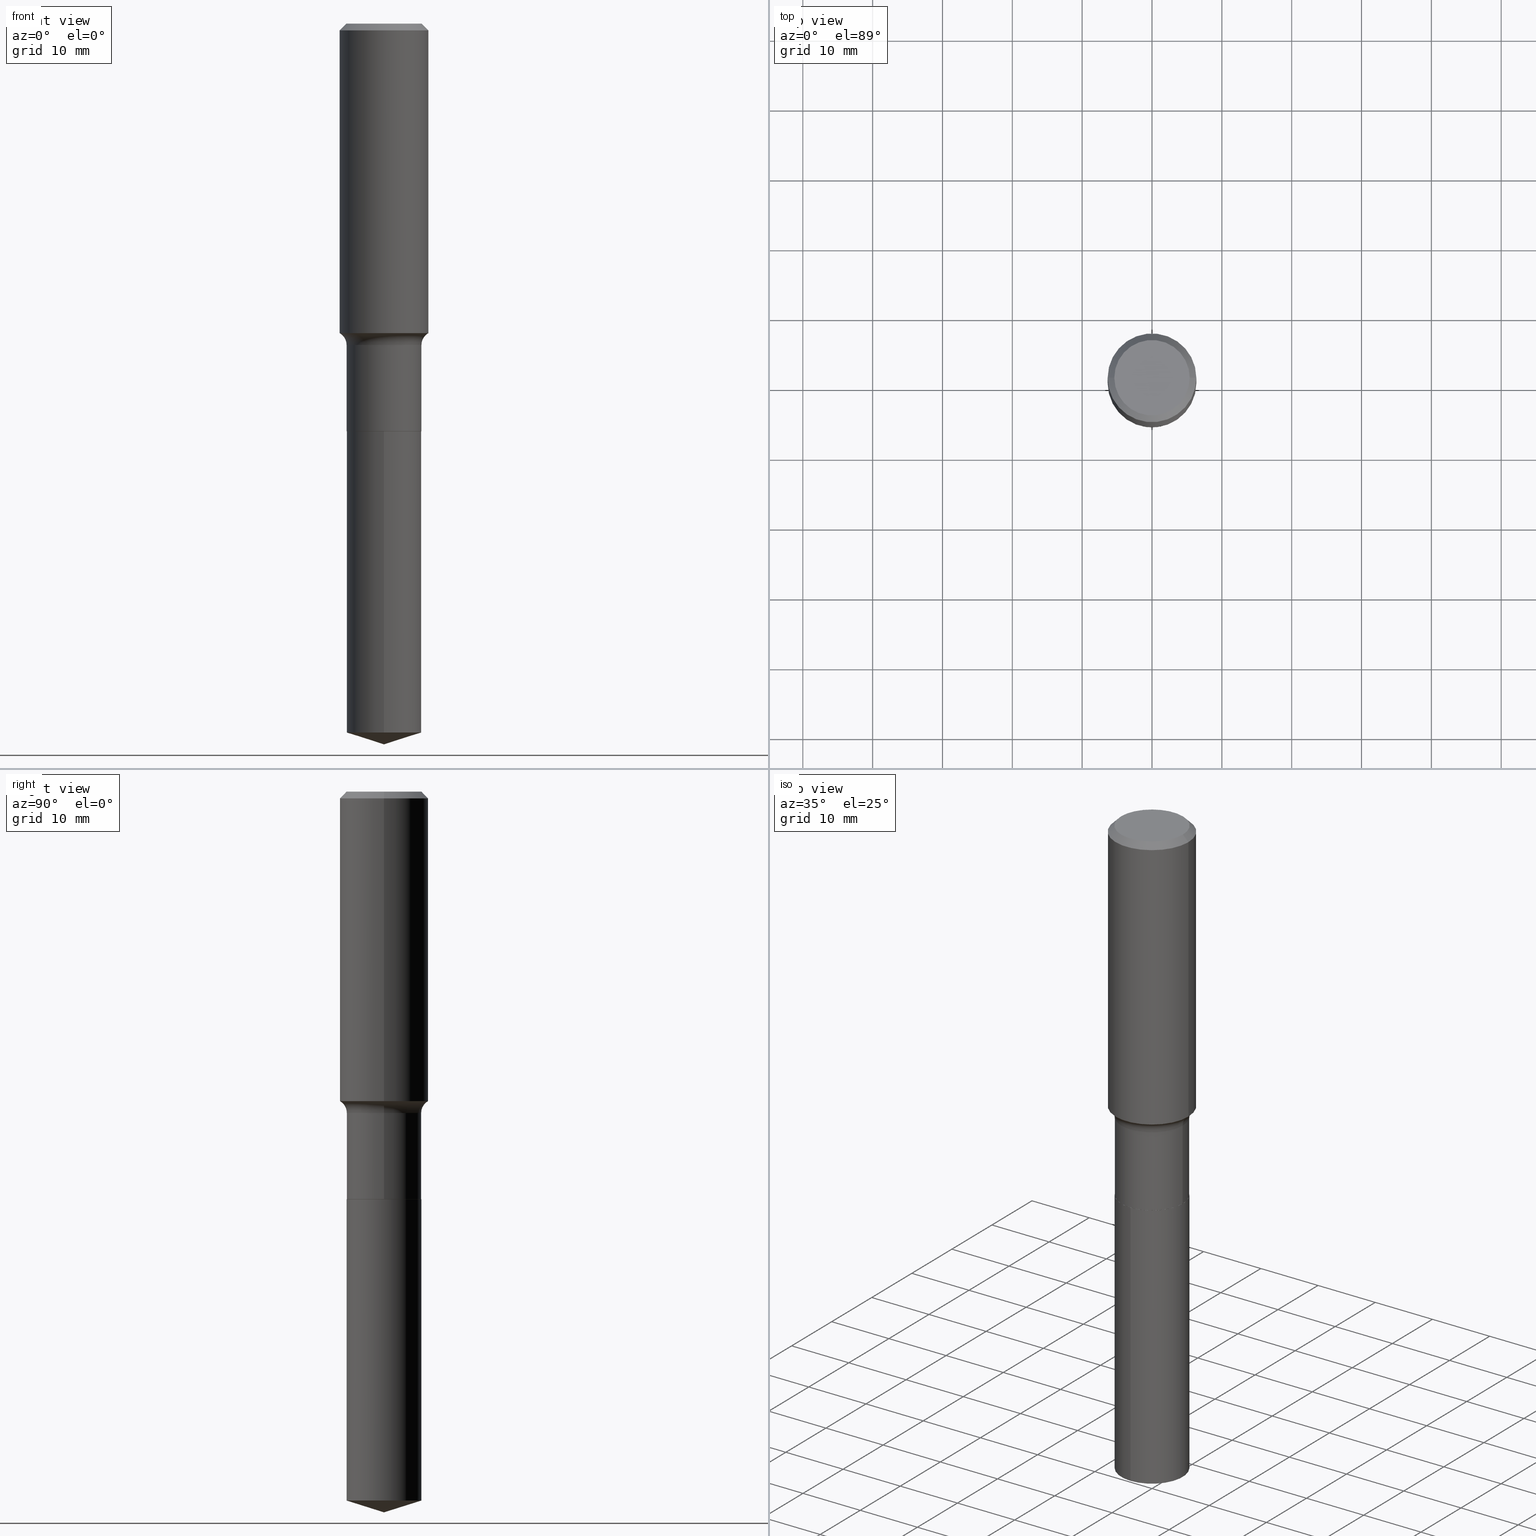
[diagram: canonical four-view strip — front | top / right | iso, engineering-drawing reading convention]
A machine part, canonical four-view strip (front | top / right | iso — engineering-drawing reading convention). The complete STEP part file that produces these views, byte-faithful:
ISO-10303-21;
HEADER;
FILE_DESCRIPTION (( 'STEP AP203' ),
    '1' );
FILE_NAME ('51358.STEP',
    '2024-04-19T12:51:49',
    ( '' ),
    ( '' ),
    'SwSTEP 2.0',
    'SolidWorks 2023',
    '' );
FILE_SCHEMA (( 'CONFIG_CONTROL_DESIGN' ));
ENDSEC;

DATA;
#1 = FACE_OUTER_BOUND ( 'NONE', #180, .T. ) ;
#2 = EDGE_CURVE ( 'NONE', #189, #69, #329, .T. ) ;
#3 = CIRCLE ( 'NONE', #458, 0.2109499999999999986 ) ;
#4 = ORIENTED_EDGE ( 'NONE', *, *, #228, .T. ) ;
#5 = ADVANCED_FACE ( 'NONE', ( #1 ), #83, .T. ) ;
#6 = CARTESIAN_POINT ( 'NONE',  ( 0.2104499999999999982, -9.489147982707895563E-15, -2.296899999999999942 ) ) ;
#7 = ORIENTED_EDGE ( 'NONE', *, *, #14, .T. ) ;
#8 = CARTESIAN_POINT ( 'NONE',  ( 5.616997300926640597E-29, -8.019583487188821005E-15, -2.296899999999999942 ) ) ;
#9 = UNCERTAINTY_MEASURE_WITH_UNIT (LENGTH_MEASURE( 1.000000000000000082E-05 ), #406, 'distance_accuracy_value', 'NONE');
#10 = DATE_TIME_ROLE ( 'creation_date' ) ;
#11 = CIRCLE ( 'NONE', #277, 0.07800000000000002764 ) ;
#12 = AXIS2_PLACEMENT_3D ( 'NONE', #174, #398, #353 ) ;
#13 = CARTESIAN_POINT ( 'NONE',  ( -0.2109499999999999431, -5.672787342964832849E-15, -1.811700000000000310 ) ) ;
#14 = EDGE_CURVE ( 'NONE', #29, #36, #197, .T. ) ;
#15 = DIRECTION ( 'NONE',  ( -2.445665733162278401E-29, 3.491199328203490904E-15, 1.000000000000000000 ) ) ;
#16 = SHAPE_DEFINITION_REPRESENTATION ( #18, #404 ) ;
#17 = CARTESIAN_POINT ( 'NONE',  ( 1.498889901086028954E-15, 0.2109499999999919495, -2.296900000000000830 ) ) ;
#18 = PRODUCT_DEFINITION_SHAPE ( 'NONE', 'NONE',  #360 ) ;
#19 = FACE_OUTER_BOUND ( 'NONE', #176, .T. ) ;
#20 = APPROVAL_DATE_TIME ( #237, #114 ) ;
#21 = ADVANCED_FACE ( 'NONE', ( #490 ), #293, .T. ) ;
#22 = DIRECTION ( 'NONE',  ( -1.000000000000000000, 7.105427357601001859E-15, 0.000000000000000000 ) ) ;
#23 = CARTESIAN_POINT ( 'NONE',  ( -1.591006383764330940E-46, 2.271535455632768948E-32, 6.505936120470318766E-18 ) ) ;
#24 = EDGE_LOOP ( 'NONE', ( #292, #492, #452 ) ) ;
#25 = DIRECTION ( 'NONE',  ( -2.445468806185136597E-29, 3.491481338843145583E-15, 1.000000000000000000 ) ) ;
#26 = LOCAL_TIME ( 8, 51, 49.00000000000000000, #358 ) ;
#27 = DIRECTION ( 'NONE',  ( 1.000000000000000000, -6.982962677686266711E-15, 4.876376119033268190E-29 ) ) ;
#28 = CALENDAR_DATE ( 2024, 19, 4 ) ;
#29 = VERTEX_POINT ( 'NONE', #459 ) ;
#30 = LINE ( 'NONE', #62, #417 ) ;
#31 = CIRCLE ( 'NONE', #299, 0.2109499999999999431 ) ;
#32 = CIRCLE ( 'NONE', #381, 0.2500000000000002220 ) ;
#33 = ADVANCED_FACE ( 'NONE', ( #113 ), #414, .F. ) ;
#34 = ORIENTED_EDGE ( 'NONE', *, *, #295, .T. ) ;
#35 = CARTESIAN_POINT ( 'NONE',  ( 0.2124999999999999944, -1.651955437087975937E-15, 6.505936120481282700E-18 ) ) ;
#36 = VERTEX_POINT ( 'NONE', #116 ) ;
#37 = CIRCLE ( 'NONE', #252, 0.07800000000000002764 ) ;
#38 = ORIENTED_EDGE ( 'NONE', *, *, #112, .F. ) ;
#39 = ADVANCED_FACE ( 'NONE', ( #333 ), #74, .F. ) ;
#40 = ORIENTED_EDGE ( 'NONE', *, *, #476, .T. ) ;
#41 = ORIENTED_EDGE ( 'NONE', *, *, #271, .T. ) ;
#42 = ADVANCED_FACE ( 'NONE', ( #79 ), #230, .T. ) ;
#43 = VERTEX_POINT ( 'NONE', #234 ) ;
#44 = CIRCLE ( 'NONE', #61, 0.2104499999999999982 ) ;
#45 = ORIENTED_EDGE ( 'NONE', *, *, #106, .F. ) ;
#46 = CYLINDRICAL_SURFACE ( 'NONE', #177, 0.2500000000000001110 ) ;
#47 = CARTESIAN_POINT ( 'NONE',  ( 5.616997300926640597E-29, -8.019583487188821005E-15, -2.296899999999999942 ) ) ;
#48 = LOCAL_TIME ( 8, 51, 49.00000000000000000, #470 ) ;
#49 = CARTESIAN_POINT ( 'NONE',  ( 4.430455836165612608E-29, -6.325516741582127678E-15, -1.811700000000000310 ) ) ;
#50 = CALENDAR_DATE ( 2024, 19, 4 ) ;
#51 = AXIS2_PLACEMENT_3D ( 'NONE', #124, #15, #130 ) ;
#52 = AXIS2_PLACEMENT_3D ( 'NONE', #486, #210, #142 ) ;
#53 = CARTESIAN_POINT ( 'NONE',  ( 9.772397916556006404E-29, -1.395143739550827002E-14, -3.995987720485978834 ) ) ;
#54 = PERSON_AND_ORGANIZATION ( #203, #85 ) ;
#55 = CARTESIAN_POINT ( 'NONE',  ( 0.2500000000000002776, -7.835307206898355529E-15, -1.744121175653907674 ) ) ;
#56 = APPROVAL_STATUS ( 'not_yet_approved' ) ;
#57 = LOCAL_TIME ( 8, 51, 49.00000000000000000, #86 ) ;
#58 = CARTESIAN_POINT ( 'NONE',  ( 0.2889499999999999291, -8.343243807299573289E-15, -1.811700000000000310 ) ) ;
#59 = PERSON_AND_ORGANIZATION ( #203, #85 ) ;
#60 = DIRECTION ( 'NONE',  ( 1.000000000000000000, -6.982962677686269077E-15, 4.883557194083113462E-29 ) ) ;
#61 = AXIS2_PLACEMENT_3D ( 'NONE', #484, #97, #317 ) ;
#62 = CARTESIAN_POINT ( 'NONE',  ( 9.934612397824160583E-29, -1.418429277130312671E-14, -4.062500000000000000 ) ) ;
#63 = DIRECTION ( 'NONE',  ( 1.000000000000000000, -6.982962677686268288E-15, 0.000000000000000000 ) ) ;
#64 = DIRECTION ( 'NONE',  ( 1.000000000000000000, -6.982962677686266711E-15, 0.000000000000000000 ) ) ;
#65 = CARTESIAN_POINT ( 'NONE',  ( 4.265193929268578422E-29, -6.089566537476786485E-15, -1.744121175653907674 ) ) ;
#66 = CARTESIAN_POINT ( 'NONE',  ( 0.2109499999999999431, -7.798572718440045243E-15, -1.811700000000000310 ) ) ;
#67 = AXIS2_PLACEMENT_3D ( 'NONE', #392, #430, #196 ) ;
#68 = CC_DESIGN_PERSON_AND_ORGANIZATION_ASSIGNMENT ( #133, #162, ( #263 ) ) ;
#69 = VERTEX_POINT ( 'NONE', #471 ) ;
#70 = DIRECTION ( 'NONE',  ( 1.000000000000000000, -6.982962677686266711E-15, 4.876176775795935793E-29 ) ) ;
#71 = EDGE_CURVE ( 'NONE', #172, #29, #416, .T. ) ;
#72 = ORIENTED_EDGE ( 'NONE', *, *, #112, .T. ) ;
#73 = EDGE_CURVE ( 'NONE', #296, #259, #238, .T. ) ;
#74 = PLANE ( 'NONE',  #449 ) ;
#75 = CIRCLE ( 'NONE', #457, 0.2109499999999999986 ) ;
#76 = VERTEX_POINT ( 'NONE', #13 ) ;
#77 = VERTEX_POINT ( 'NONE', #163 ) ;
#78 = EDGE_LOOP ( 'NONE', ( #460, #294, #80, #254 ) ) ;
#79 = FACE_OUTER_BOUND ( 'NONE', #379, .T. ) ;
#80 = ORIENTED_EDGE ( 'NONE', *, *, #410, .T. ) ;
#81 = AXIS2_PLACEMENT_3D ( 'NONE', #198, #84, #132 ) ;
#82 = FACE_OUTER_BOUND ( 'NONE', #454, .T. ) ;
#83 = CYLINDRICAL_SURFACE ( 'NONE', #405, 0.2109499999999999986 ) ;
#84 = DIRECTION ( 'NONE',  ( -2.445468806185136597E-29, 3.491481338843145583E-15, 1.000000000000000000 ) ) ;
#85 = ORGANIZATION ( 'UNSPECIFIED', 'UNSPECIFIED', '' ) ;
#86 = COORDINATED_UNIVERSAL_TIME_OFFSET ( 5, 0, .BEHIND. ) ;
#87 = CARTESIAN_POINT ( 'NONE',  ( -0.2104499999999999982, -6.524246299781689980E-15, -2.296899999999999942 ) ) ;
#88 = APPROVAL_DATE_TIME ( #274, #387 ) ;
#89 = AXIS2_PLACEMENT_3D ( 'NONE', #310, #119, #472 ) ;
#90 = DIRECTION ( 'NONE',  ( -6.982962677686266711E-15, -1.000000000000000000, 3.491481338843145583E-15 ) ) ;
#91 = CARTESIAN_POINT ( 'NONE',  ( 1.498889901086028757E-15, 0.2109499999999859821, -3.995987720485979278 ) ) ;
#92 = PRODUCT ( '51358', '51358', '', ( #411 ) ) ;
#93 = DIRECTION ( 'NONE',  ( -2.445665733162278682E-29, 3.491199328203490904E-15, 1.000000000000000000 ) ) ;
#94 = DIRECTION ( 'NONE',  ( -2.445468806185136597E-29, 3.491481338843145583E-15, 1.000000000000000000 ) ) ;
#95 = DIRECTION ( 'NONE',  ( -2.445468806185136597E-29, 3.491481338843145583E-15, 1.000000000000000000 ) ) ;
#96 = AXIS2_PLACEMENT_3D ( 'NONE', #247, #445, #70 ) ;
#97 = DIRECTION ( 'NONE',  ( -2.445468806185136597E-29, 3.491481338843145583E-15, 1.000000000000000000 ) ) ;
#98 = ORIENTED_EDGE ( 'NONE', *, *, #271, .F. ) ;
#99 = CARTESIAN_POINT ( 'NONE',  ( 5.615774566523547796E-29, -8.017837746519400290E-15, -2.296400000000000219 ) ) ;
#100 = EDGE_CURVE ( 'NONE', #219, #69, #489, .T. ) ;
#101 = CC_DESIGN_APPROVAL ( #461, ( #360 ) ) ;
#102 = DIRECTION ( 'NONE',  ( 1.000000000000000000, -6.982962677686269077E-15, 4.883557194083113462E-29 ) ) ;
#103 = EDGE_LOOP ( 'NONE', ( #337, #229, #225, #413 ) ) ;
#104 = CARTESIAN_POINT ( 'NONE',  ( 0.2500000000000000000, -1.846055049649501575E-15, -0.03750000000000025535 ) ) ;
#105 = CIRCLE ( 'NONE', #258, 0.2109499999999999431 ) ;
#106 = EDGE_CURVE ( 'NONE', #373, #365, #488, .T. ) ;
#107 = ORIENTED_EDGE ( 'NONE', *, *, #126, .F. ) ;
#108 = CARTESIAN_POINT ( 'NONE',  ( 9.170508023194324245E-31, -1.309305502066188567E-16, -0.03750000000000025535 ) ) ;
#109 = ORIENTED_EDGE ( 'NONE', *, *, #368, .F. ) ;
#110 = CONICAL_SURFACE ( 'NONE', #432, 0.2104499999999999982, 0.7853981633975507526 ) ;
#111 = ORIENTED_EDGE ( 'NONE', *, *, #260, .F. ) ;
#112 = EDGE_CURVE ( 'NONE', #265, #219, #166, .T. ) ;
#113 = FACE_OUTER_BOUND ( 'NONE', #420, .T. ) ;
#114 = APPROVAL ( #56, 'UNSPECIFIED' ) ;
#115 = ORIENTED_EDGE ( 'NONE', *, *, #14, .F. ) ;
#116 = CARTESIAN_POINT ( 'NONE',  ( -1.473055976857861753E-15, -0.2109500000000080200, -2.296899999999999054 ) ) ;
#117 = AXIS2_PLACEMENT_3D ( 'NONE', #171, #363, #477 ) ;
#118 = EDGE_LOOP ( 'NONE', ( #109, #485 ) ) ;
#119 = DIRECTION ( 'NONE',  ( -2.445468806185136597E-29, 3.491481338843145583E-15, 1.000000000000000000 ) ) ;
#120 = CLOSED_SHELL ( 'NONE', ( #275, #21, #159, #256, #453, #342, #419, #42, #400, #224, #39, #155 ) ) ;
#121 = ORIENTED_EDGE ( 'NONE', *, *, #260, .T. ) ;
#122 = VECTOR ( 'NONE', #478, 39.37007874015748143 ) ;
#123 = APPROVAL_ROLE ( '' ) ;
#124 = CARTESIAN_POINT ( 'NONE',  ( -8.635098776730591690E-28, 1.232651474278914436E-13, 35.30757874015748143 ) ) ;
#125 = DESIGN_CONTEXT ( 'detailed design', #331, 'design' ) ;
#126 = EDGE_CURVE ( 'NONE', #77, #76, #267, .T. ) ;
#127 = CALENDAR_DATE ( 2024, 19, 4 ) ;
#128 = FACE_OUTER_BOUND ( 'NONE', #221, .T. ) ;
#129 = APPROVAL_ROLE ( '' ) ;
#130 = DIRECTION ( 'NONE',  ( -6.982962677686266711E-15, -1.000000000000000000, 3.500519750498728492E-15 ) ) ;
#131 = AXIS2_PLACEMENT_3D ( 'NONE', #99, #395, #64 ) ;
#132 = DIRECTION ( 'NONE',  ( 1.000000000000000000, -6.982962677686266711E-15, 4.876176775795935793E-29 ) ) ;
#133 = PERSON_AND_ORGANIZATION ( #203, #85 ) ;
#134 = DIRECTION ( 'NONE',  ( 1.000000000000000000, -6.982962677686264344E-15, 0.000000000000000000 ) ) ;
#135 = DIRECTION ( 'NONE',  ( -1.000000000000000000, 6.982962677686266711E-15, 0.000000000000000000 ) ) ;
#136 = PERSON_AND_ORGANIZATION ( #203, #85 ) ;
#137 = CARTESIAN_POINT ( 'NONE',  ( 5.616997300926640597E-29, -8.019583487188821005E-15, -2.296899999999999942 ) ) ;
#138 = LINE ( 'NONE', #182, #236 ) ;
#139 = APPLICATION_PROTOCOL_DEFINITION ( 'international standard', 'config_control_design', 1994, #331 ) ;
#140 = ORIENTED_EDGE ( 'NONE', *, *, #2, .T. ) ;
#141 = FACE_OUTER_BOUND ( 'NONE', #412, .T. ) ;
#142 = DIRECTION ( 'NONE',  ( 1.000000000000000000, -6.982962677686266711E-15, 4.876176775795935793E-29 ) ) ;
#143 = APPLICATION_CONTEXT ( 'configuration controlled 3d designs of mechanical parts and assemblies' ) ;
#144 = DIRECTION ( 'NONE',  ( -6.982962677686265922E-15, -1.000000000000000000, 3.885064698266314085E-15 ) ) ;
#145 = ADVANCED_FACE ( 'NONE', ( #433 ), #370, .T. ) ;
#146 = CARTESIAN_POINT ( 'NONE',  ( -0.2124999999999999944, 1.549344844111639638E-15, 6.505936120459713055E-18 ) ) ;
#147 = AXIS2_PLACEMENT_3D ( 'NONE', #53, #341, #389 ) ;
#148 = EDGE_LOOP ( 'NONE', ( #45, #298, #184, #255 ) ) ;
#149 = DIRECTION ( 'NONE',  ( 1.000000000000000000, -6.982962677686265922E-15, 4.876176775795935793E-29 ) ) ;
#150 = ORIENTED_EDGE ( 'NONE', *, *, #100, .F. ) ;
#151 = AXIS2_PLACEMENT_3D ( 'NONE', #207, #482, #60 ) ;
#152 = ORIENTED_EDGE ( 'NONE', *, *, #421, .T. ) ;
#153 = CARTESIAN_POINT ( 'NONE',  ( 5.616997300926640597E-29, -8.019583487188821005E-15, -2.296899999999999942 ) ) ;
#154 = ORIENTED_EDGE ( 'NONE', *, *, #126, .T. ) ;
#155 = ADVANCED_FACE ( 'NONE', ( #240 ), #160, .T. ) ;
#156 = CARTESIAN_POINT ( 'NONE',  ( -0.2500000000000000000, -1.333891704441451331E-15, -0.03750000000000025535 ) ) ;
#157 = ORIENTED_EDGE ( 'NONE', *, *, #447, .T. ) ;
#158 = DIRECTION ( 'NONE',  ( 1.000000000000000000, -6.982962677686280910E-15, 0.000000000000000000 ) ) ;
#159 = ADVANCED_FACE ( 'NONE', ( #423 ), #46, .T. ) ;
#160 = CONICAL_SURFACE ( 'NONE', #440, 0.2104499999999999982, 0.7853981633975507526 ) ;
#161 = CIRCLE ( 'NONE', #222, 0.2109499999999999986 ) ;
#162 = PERSON_AND_ORGANIZATION_ROLE ( 'classification_officer' ) ;
#163 = CARTESIAN_POINT ( 'NONE',  ( -0.2109499999999999986, -5.672787342964832060E-15, -2.296400000000000219 ) ) ;
#164 = CALENDAR_DATE ( 2024, 19, 4 ) ;
#165 = DIRECTION ( 'NONE',  ( -2.445468806185136597E-29, 3.491481338843145583E-15, 1.000000000000000000 ) ) ;
#166 = LINE ( 'NONE', #338, #465 ) ;
#167 = CARTESIAN_POINT ( 'NONE',  ( 1.498889901085987144E-15, 0.2109499999999919773, -2.296900000000000830 ) ) ;
#168 = APPROVAL_STATUS ( 'not_yet_approved' ) ;
#169 = DIRECTION ( 'NONE',  ( 1.000000000000000000, -6.982962677686266711E-15, 0.000000000000000000 ) ) ;
#170 = DIRECTION ( 'NONE',  ( 2.445468806185136597E-29, -3.491481338843145583E-15, -1.000000000000000000 ) ) ;
#171 = CARTESIAN_POINT ( 'NONE',  ( 0.000000000000000000, 0.000000000000000000, 0.000000000000000000 ) ) ;
#172 = VERTEX_POINT ( 'NONE', #91 ) ;
#173 = CARTESIAN_POINT ( 'NONE',  ( 9.935517040971755007E-29, -1.418299727082668286E-14, -4.062500000000000000 ) ) ;
#174 = CARTESIAN_POINT ( 'NONE',  ( 5.616997300926640597E-29, -8.019583487188821005E-15, -2.296899999999999942 ) ) ;
#175 = ADVANCED_FACE ( 'NONE', ( #82 ), #286, .T. ) ;
#176 = EDGE_LOOP ( 'NONE', ( #248, #4, #111, #369 ) ) ;
#177 = AXIS2_PLACEMENT_3D ( 'NONE', #385, #312, #281 ) ;
#178 = CIRCLE ( 'NONE', #396, 0.2109499999999999986 ) ;
#179 = DIRECTION ( 'NONE',  ( -6.659769872151627355E-15, -0.9537169507482260444, 0.3007057995042756726 ) ) ;
#180 = EDGE_LOOP ( 'NONE', ( #399, #194, #7, #302 ) ) ;
#181 = DIRECTION ( 'NONE',  ( -2.445468806185136877E-29, 3.491481338843145188E-15, 1.000000000000000000 ) ) ;
#182 = CARTESIAN_POINT ( 'NONE',  ( -0.2500000000000000000, 1.614810119214947994E-15, -0.03750000000000025535 ) ) ;
#183 = PERSON_AND_ORGANIZATION_ROLE ( 'design_owner' ) ;
#184 = ORIENTED_EDGE ( 'NONE', *, *, #311, .T. ) ;
#185 = VECTOR ( 'NONE', #190, 39.37007874015748143 ) ;
#186 = VECTOR ( 'NONE', #366, 39.37007874015748143 ) ;
#187 = ORIENTED_EDGE ( 'NONE', *, *, #314, .T. ) ;
#188 = EDGE_CURVE ( 'NONE', #189, #446, #11, .T. ) ;
#189 = VERTEX_POINT ( 'NONE', #55 ) ;
#190 = DIRECTION ( 'NONE',  ( -2.445468806185136877E-29, 3.491481338843145188E-15, 1.000000000000000000 ) ) ;
#191 = DIRECTION ( 'NONE',  ( 6.982962677686265922E-15, 1.000000000000000000, -3.491199328203490904E-15 ) ) ;
#192 = AXIS2_PLACEMENT_3D ( 'NONE', #374, #261, #191 ) ;
#193 = AXIS2_PLACEMENT_3D ( 'NONE', #242, #95, #394 ) ;
#194 = ORIENTED_EDGE ( 'NONE', *, *, #71, .T. ) ;
#195 = ORIENTED_EDGE ( 'NONE', *, *, #447, .F. ) ;
#196 = DIRECTION ( 'NONE',  ( -6.982962677686266711E-15, -1.000000000000000000, 3.500519750498728492E-15 ) ) ;
#197 = LINE ( 'NONE', #339, #380 ) ;
#198 = CARTESIAN_POINT ( 'NONE',  ( 0.000000000000000000, 0.000000000000000000, 0.000000000000000000 ) ) ;
#199 = VECTOR ( 'NONE', #386, 39.37007874015748143 ) ;
#200 = PERSON_AND_ORGANIZATION ( #203, #85 ) ;
#201 = DIRECTION ( 'NONE',  ( -2.445468806185136877E-29, 3.491481338843145188E-15, 1.000000000000000000 ) ) ;
#202 = DIRECTION ( 'NONE',  ( -2.445665733162278401E-29, 3.491199328203490904E-15, 1.000000000000000000 ) ) ;
#203 = PERSON ( 'UNSPECIFIED', 'UNSPECIFIED', 'UNSPECIFIED', ('UNSPECIFIED'), ('UNSPECIFIED'), ('UNSPECIFIED') ) ;
#204 = CARTESIAN_POINT ( 'NONE',  ( -0.2889499999999999291, -4.272403506603318694E-15, -1.811700000000000310 ) ) ;
#205 = PERSON_AND_ORGANIZATION_ROLE ( 'creator' ) ;
#206 = VECTOR ( 'NONE', #232, 39.37007874015748143 ) ;
#207 = CARTESIAN_POINT ( 'NONE',  ( 4.430455836165612608E-29, -6.325516741582127678E-15, -1.811700000000000310 ) ) ;
#208 = FACE_OUTER_BOUND ( 'NONE', #330, .T. ) ;
#209 = CARTESIAN_POINT ( 'NONE',  ( -0.2500000000000002776, -4.313209698076534443E-15, -1.744121175653907674 ) ) ;
#210 = DIRECTION ( 'NONE',  ( -2.445468806185136597E-29, 3.491481338843145583E-15, 1.000000000000000000 ) ) ;
#211 = APPROVAL_PERSON_ORGANIZATION ( #59, #387, #123 ) ;
#212 = DIRECTION ( 'NONE',  ( 1.000000000000000000, -6.982962677686268288E-15, 0.000000000000000000 ) ) ;
#213 = AXIS2_PLACEMENT_3D ( 'NONE', #108, #297, #377 ) ;
#214 = AXIS2_PLACEMENT_3D ( 'NONE', #249, #170, #135 ) ;
#215 = EDGE_CURVE ( 'NONE', #36, #223, #75, .T. ) ;
#216 = ORIENTED_EDGE ( 'NONE', *, *, #424, .F. ) ;
#217 = CYLINDRICAL_SURFACE ( 'NONE', #52, 0.2109499999999999709 ) ;
#218 = LENGTH_MEASURE_WITH_UNIT ( LENGTH_MEASURE( 0.02539999999999999897 ), #362 );
#219 = VERTEX_POINT ( 'NONE', #156 ) ;
#220 = LOCAL_TIME ( 8, 51, 49.00000000000000000, #391 ) ;
#221 = EDGE_LOOP ( 'NONE', ( #418, #300 ) ) ;
#222 = AXIS2_PLACEMENT_3D ( 'NONE', #323, #402, #144 ) ;
#223 = VERTEX_POINT ( 'NONE', #17 ) ;
#224 = ADVANCED_FACE ( 'NONE', ( #128 ), #463, .F. ) ;
#225 = ORIENTED_EDGE ( 'NONE', *, *, #73, .T. ) ;
#226 = EDGE_CURVE ( 'NONE', #76, #446, #31, .T. ) ;
#227 = EDGE_LOOP ( 'NONE', ( #121, #154, #422, #462 ) ) ;
#228 = EDGE_CURVE ( 'NONE', #43, #77, #428, .T. ) ;
#229 = ORIENTED_EDGE ( 'NONE', *, *, #469, .T. ) ;
#230 = CYLINDRICAL_SURFACE ( 'NONE', #81, 0.2500000000000001110 ) ;
#231 = DIRECTION ( 'NONE',  ( -6.982962677686265922E-15, -1.000000000000000000, 3.885064698266314085E-15 ) ) ;
#232 = DIRECTION ( 'NONE',  ( 0.7071067811866199593, -2.468850131083015945E-15, 0.7071067811864750752 ) ) ;
#233 = DATE_TIME_ROLE ( 'classification_date' ) ;
#234 = CARTESIAN_POINT ( 'NONE',  ( -0.2104499999999999982, -6.521597072607580356E-15, -2.296899999999999942 ) ) ;
#235 = AXIS2_PLACEMENT_3D ( 'NONE', #467, #348, #270 ) ;
#236 = VECTOR ( 'NONE', #253, 39.37007874015748143 ) ;
#237 = DATE_AND_TIME ( #164, #376 ) ;
#238 = LINE ( 'NONE', #6, #206 ) ;
#239 = DATE_AND_TIME ( #28, #26 ) ;
#240 = FACE_OUTER_BOUND ( 'NONE', #103, .T. ) ;
#241 = PERSON_AND_ORGANIZATION_ROLE ( 'design_supplier' ) ;
#242 = CARTESIAN_POINT ( 'NONE',  ( 9.170508023194324245E-31, -1.309305502066188567E-16, -0.03750000000000025535 ) ) ;
#243 = DIRECTION ( 'NONE',  ( -2.445468806185136597E-29, 3.491481338843145583E-15, 1.000000000000000000 ) ) ;
#244 = VECTOR ( 'NONE', #201, 39.37007874015748143 ) ;
#245 = AXIS2_PLACEMENT_3D ( 'NONE', #285, #401, #289 ) ;
#246 = CARTESIAN_POINT ( 'NONE',  ( 4.430455836165612608E-29, -6.325516741582127678E-15, -1.811700000000000310 ) ) ;
#247 = CARTESIAN_POINT ( 'NONE',  ( 0.000000000000000000, 0.000000000000000000, 0.000000000000000000 ) ) ;
#248 = ORIENTED_EDGE ( 'NONE', *, *, #368, .T. ) ;
#249 = CARTESIAN_POINT ( 'NONE',  ( 9.170508023194324245E-31, -1.309305502066188567E-16, -0.03750000000000025535 ) ) ;
#250 = FACE_OUTER_BOUND ( 'NONE', #227, .T. ) ;
#251 = EDGE_LOOP ( 'NONE', ( #157, #72, #262, #382 ) ) ;
#252 = AXIS2_PLACEMENT_3D ( 'NONE', #204, #350, #22 ) ;
#253 = DIRECTION ( 'NONE',  ( -0.7071067811865451302, 2.468850131082231817E-15, -0.7071067811865499042 ) ) ;
#254 = ORIENTED_EDGE ( 'NONE', *, *, #100, .T. ) ;
#255 = ORIENTED_EDGE ( 'NONE', *, *, #410, .F. ) ;
#256 = ADVANCED_FACE ( 'NONE', ( #141 ), #408, .F. ) ;
#257 = CC_DESIGN_PERSON_AND_ORGANIZATION_ASSIGNMENT ( #340, #241, ( #304 ) ) ;
#258 = AXIS2_PLACEMENT_3D ( 'NONE', #246, #397, #63 ) ;
#259 = VERTEX_POINT ( 'NONE', #284 ) ;
#260 = EDGE_CURVE ( 'NONE', #259, #77, #178, .T. ) ;
#261 = DIRECTION ( 'NONE',  ( 2.445665733162278121E-29, -3.491199328203490904E-15, -1.000000000000000000 ) ) ;
#262 = ORIENTED_EDGE ( 'NONE', *, *, #311, .F. ) ;
#263 = SECURITY_CLASSIFICATION ( '', '', #349 ) ;
#264 = CC_DESIGN_SECURITY_CLASSIFICATION ( #263, ( #304 ) ) ;
#265 = VERTEX_POINT ( 'NONE', #209 ) ;
#266 = MANIFOLD_SOLID_BREP ( 'Body-Move/Copy2[2]', #120 ) ;
#267 = LINE ( 'NONE', #346, #244 ) ;
#268 = ORIENTED_EDGE ( 'NONE', *, *, #355, .T. ) ;
#269 = PERSON_AND_ORGANIZATION_ROLE ( 'creator' ) ;
#270 = DIRECTION ( 'NONE',  ( -1.000000000000000000, 6.982962677686265922E-15, -4.876176775795935793E-29 ) ) ;
#271 = EDGE_CURVE ( 'NONE', #265, #76, #37, .T. ) ;
#272 = DATE_AND_TIME ( #127, #57 ) ;
#273 = DIRECTION ( 'NONE',  ( 1.000000000000000000, -6.982962677686268288E-15, 0.000000000000000000 ) ) ;
#274 = DATE_AND_TIME ( #50, #48 ) ;
#275 = ADVANCED_FACE ( 'NONE', ( #19 ), #110, .T. ) ;
#276 = CARTESIAN_POINT ( 'NONE',  ( 9.170508023194324245E-31, -1.309305502066188567E-16, -0.03750000000000025535 ) ) ;
#277 = AXIS2_PLACEMENT_3D ( 'NONE', #58, #90, #158 ) ;
#278 = CIRCLE ( 'NONE', #131, 0.2109499999999999986 ) ;
#279 = CALENDAR_DATE ( 2024, 19, 4 ) ;
#280 = MANIFOLD_SOLID_BREP ( 'Body-Move/Copy2[1]', #343 ) ;
#281 = DIRECTION ( 'NONE',  ( 1.000000000000000000, -6.982962677686266711E-15, 4.876176775795935793E-29 ) ) ;
#282 = DIRECTION ( 'NONE',  ( -2.445468806185136597E-29, 3.491481338843145583E-15, 1.000000000000000000 ) ) ;
#283 = APPROVAL_STATUS ( 'not_yet_approved' ) ;
#284 = CARTESIAN_POINT ( 'NONE',  ( 0.2109499999999999986, -9.490893723377317855E-15, -2.296400000000000219 ) ) ;
#285 = CARTESIAN_POINT ( 'NONE',  ( 5.616997300926640597E-29, -8.019583487188821005E-15, -2.296899999999999942 ) ) ;
#286 = CONICAL_SURFACE ( 'NONE', #67, 124.8659371009142092, 1.265363707695889683 ) ;
#287 = APPROVAL_ROLE ( '' ) ;
#288 = ORIENTED_EDGE ( 'NONE', *, *, #355, .F. ) ;
#289 = DIRECTION ( 'NONE',  ( -6.982962677686265922E-15, -1.000000000000000000, 3.885064698266314085E-15 ) ) ;
#290 = CC_DESIGN_APPROVAL ( #114, ( #263 ) ) ;
#291 = LINE ( 'NONE', #479, #322 ) ;
#292 = ORIENTED_EDGE ( 'NONE', *, *, #314, .F. ) ;
#293 = CONICAL_SURFACE ( 'NONE', #213, 0.2500000000000000000, 0.7853981633974449483 ) ;
#294 = ORIENTED_EDGE ( 'NONE', *, *, #364, .F. ) ;
#295 = EDGE_CURVE ( 'NONE', #29, #172, #3, .T. ) ;
#296 = VERTEX_POINT ( 'NONE', #315 ) ;
#297 = DIRECTION ( 'NONE',  ( 2.445468806185136597E-29, -3.491481338843145583E-15, -1.000000000000000000 ) ) ;
#298 = ORIENTED_EDGE ( 'NONE', *, *, #390, .T. ) ;
#299 = AXIS2_PLACEMENT_3D ( 'NONE', #49, #426, #273 ) ;
#300 = ORIENTED_EDGE ( 'NONE', *, *, #106, .T. ) ;
#301 = EDGE_CURVE ( 'NONE', #172, #223, #438, .T. ) ;
#302 = ORIENTED_EDGE ( 'NONE', *, *, #476, .F. ) ;
#303 = DIRECTION ( 'NONE',  ( 1.000000000000000000, -6.982962677686266711E-15, 0.000000000000000000 ) ) ;
#304 = PRODUCT_DEFINITION_FORMATION_WITH_SPECIFIED_SOURCE ( 'ANY', '', #92, .NOT_KNOWN. ) ;
#305 = CC_DESIGN_PERSON_AND_ORGANIZATION_ASSIGNMENT ( #54, #205, ( #360 ) ) ;
#306 = EDGE_LOOP ( 'NONE', ( #107, #152, #321, #335 ) ) ;
#307 = DIRECTION ( 'NONE',  ( -6.982962677686265922E-15, -1.000000000000000000, 3.885064698266314085E-15 ) ) ;
#308 = AXIS2_PLACEMENT_3D ( 'NONE', #23, #359, #27 ) ;
#309 = DIRECTION ( 'NONE',  ( -2.445468806185136597E-29, 3.491481338843145583E-15, 1.000000000000000000 ) ) ;
#310 = CARTESIAN_POINT ( 'NONE',  ( -1.591006383764330940E-46, 2.271535455632768948E-32, 6.505936120470318766E-18 ) ) ;
#311 = EDGE_CURVE ( 'NONE', #69, #219, #313, .T. ) ;
#312 = DIRECTION ( 'NONE',  ( -2.445468806185136597E-29, 3.491481338843145583E-15, 1.000000000000000000 ) ) ;
#313 = CIRCLE ( 'NONE', #193, 0.2500000000000000000 ) ;
#314 = EDGE_CURVE ( 'NONE', #332, #172, #316, .T. ) ;
#315 = CARTESIAN_POINT ( 'NONE',  ( 0.2104499999999999982, -9.489147982707895563E-15, -2.296899999999999942 ) ) ;
#316 = LINE ( 'NONE', #318, #122 ) ;
#317 = DIRECTION ( 'NONE',  ( 1.000000000000000000, -6.982962677686264344E-15, 0.000000000000000000 ) ) ;
#318 = CARTESIAN_POINT ( 'NONE',  ( 9.935524973624313257E-29, -1.418299727082668286E-14, -4.062500000000000000 ) ) ;
#319 = FACE_OUTER_BOUND ( 'NONE', #481, .T. ) ;
#320 = EDGE_CURVE ( 'NONE', #446, #76, #105, .T. ) ;
#321 = ORIENTED_EDGE ( 'NONE', *, *, #403, .T. ) ;
#322 = VECTOR ( 'NONE', #181, 39.37007874015748143 ) ;
#323 = CARTESIAN_POINT ( 'NONE',  ( 5.616997300926640597E-29, -8.019583487188821005E-15, -2.296899999999999942 ) ) ;
#324 =( NAMED_UNIT ( * ) SI_UNIT ( $, .STERADIAN. ) SOLID_ANGLE_UNIT ( ) );
#325 = FACE_OUTER_BOUND ( 'NONE', #78, .T. ) ;
#326 = LINE ( 'NONE', #104, #186 ) ;
#327 = PRODUCT_RELATED_PRODUCT_CATEGORY ( 'detail', '', ( #92 ) ) ;
#328 = CONICAL_SURFACE ( 'NONE', #214, 0.2500000000000000000, 0.7853981633974449483 ) ;
#329 = LINE ( 'NONE', #491, #185 ) ;
#330 = EDGE_LOOP ( 'NONE', ( #34, #443, #464, #115 ) ) ;
#331 = APPLICATION_CONTEXT ( 'configuration controlled 3d designs of mechanical parts and assemblies' ) ;
#332 = VERTEX_POINT ( 'NONE', #173 ) ;
#333 = FACE_OUTER_BOUND ( 'NONE', #118, .T. ) ;
#334 = AXIS2_PLACEMENT_3D ( 'NONE', #436, #94, #102 ) ;
#335 = ORIENTED_EDGE ( 'NONE', *, *, #226, .F. ) ;
#336 = CARTESIAN_POINT ( 'NONE',  ( 5.616997300926640597E-29, -8.019583487188821005E-15, -2.296899999999999942 ) ) ;
#337 = ORIENTED_EDGE ( 'NONE', *, *, #228, .F. ) ;
#338 = CARTESIAN_POINT ( 'NONE',  ( -0.2500000000000001110, 1.776356839400251254E-15, -1.229733772563727006E-29 ) ) ;
#339 = CARTESIAN_POINT ( 'NONE',  ( -1.473055976857861753E-15, -0.2109500000000080200, -2.296899999999999054 ) ) ;
#340 = PERSON_AND_ORGANIZATION ( #203, #85 ) ;
#341 = DIRECTION ( 'NONE',  ( -2.445665733162278401E-29, 3.491199328203490904E-15, 1.000000000000000000 ) ) ;
#342 = ADVANCED_FACE ( 'NONE', ( #483 ), #217, .T. ) ;
#343 = CLOSED_SHELL ( 'NONE', ( #442, #175, #145, #5, #33 ) ) ;
#344 = CC_DESIGN_PERSON_AND_ORGANIZATION_ASSIGNMENT ( #427, #269, ( #304 ) ) ;
#345 = COORDINATED_UNIVERSAL_TIME_OFFSET ( 5, 0, .BEHIND. ) ;
#346 = CARTESIAN_POINT ( 'NONE',  ( -0.2109499999999999709, 1.498889901085931135E-15, -1.037649357289272242E-29 ) ) ;
#347 = DIRECTION ( 'NONE',  ( -2.445665733162278682E-29, 3.491199328203490904E-15, 1.000000000000000000 ) ) ;
#348 = DIRECTION ( 'NONE',  ( 2.438088387897960049E-29, -3.491481338843145188E-15, -1.000000000000000000 ) ) ;
#349 = SECURITY_CLASSIFICATION_LEVEL ( 'unclassified' ) ;
#350 = DIRECTION ( 'NONE',  ( 7.105427357601001859E-15, 1.000000000000000000, -3.491481338843145583E-15 ) ) ;
#351 = DIMENSIONAL_EXPONENTS ( 1.000000000000000000, 0.000000000000000000, 0.000000000000000000, 0.000000000000000000, 0.000000000000000000, 0.000000000000000000, 0.000000000000000000 ) ;
#352 = CARTESIAN_POINT ( 'NONE',  ( 5.615774566523547796E-29, -8.017837746519400290E-15, -2.296400000000000219 ) ) ;
#353 = DIRECTION ( 'NONE',  ( 1.000000000000000000, -6.982962677686264344E-15, 0.000000000000000000 ) ) ;
#354 = DIRECTION ( 'NONE',  ( -6.982962677686265922E-15, -1.000000000000000000, 2.590043132177542855E-15 ) ) ;
#355 = EDGE_CURVE ( 'NONE', #265, #189, #441, .T. ) ;
#356 = DIRECTION ( 'NONE',  ( 1.000000000000000000, -6.982962677686268288E-15, 0.000000000000000000 ) ) ;
#357 = CC_DESIGN_APPROVAL ( #387, ( #304 ) ) ;
#358 = COORDINATED_UNIVERSAL_TIME_OFFSET ( 5, 0, .BEHIND. ) ;
#359 = DIRECTION ( 'NONE',  ( -2.445468806185136597E-29, 3.491481338843145583E-15, 1.000000000000000000 ) ) ;
#360 = PRODUCT_DEFINITION ( 'UNKNOWN', '', #304, #125 ) ;
#361 = TOROIDAL_SURFACE ( 'NONE', #334, 0.2889499999999999291, 0.07800000000000004152 ) ;
#362 =( LENGTH_UNIT ( ) NAMED_UNIT ( * ) SI_UNIT ( $, .METRE. ) );
#363 = DIRECTION ( 'NONE',  ( 0.000000000000000000, 0.000000000000000000, 1.000000000000000000 ) ) ;
#364 = EDGE_CURVE ( 'NONE', #365, #373, #466, .T. ) ;
#365 = VERTEX_POINT ( 'NONE', #146 ) ;
#366 = DIRECTION ( 'NONE',  ( 0.7071067811865451302, -7.319954787623248157E-15, -0.7071067811865499042 ) ) ;
#367 = ORIENTED_EDGE ( 'NONE', *, *, #188, .T. ) ;
#368 = EDGE_CURVE ( 'NONE', #296, #43, #44, .T. ) ;
#369 = ORIENTED_EDGE ( 'NONE', *, *, #73, .F. ) ;
#370 = CONICAL_SURFACE ( 'NONE', #51, 124.8659371009142092, 1.265363707695889683 ) ;
#371 = CIRCLE ( 'NONE', #12, 0.2104499999999999982 ) ;
#372 = DIRECTION ( 'NONE',  ( -2.438088387897960049E-29, 3.491481338843145188E-15, 1.000000000000000000 ) ) ;
#373 = VERTEX_POINT ( 'NONE', #35 ) ;
#374 = CARTESIAN_POINT ( 'NONE',  ( 5.616997300926640597E-29, -8.019583487188821005E-15, -2.296899999999999942 ) ) ;
#375 = ORIENTED_EDGE ( 'NONE', *, *, #215, .T. ) ;
#376 = LOCAL_TIME ( 8, 51, 49.00000000000000000, #345 ) ;
#377 = DIRECTION ( 'NONE',  ( -1.000000000000000000, 6.982962677686266711E-15, 0.000000000000000000 ) ) ;
#378 = CC_DESIGN_DATE_AND_TIME_ASSIGNMENT ( #272, #233, ( #263 ) ) ;
#379 = EDGE_LOOP ( 'NONE', ( #38, #268, #140, #150 ) ) ;
#380 = VECTOR ( 'NONE', #347, 39.37007874015748143 ) ;
#381 = AXIS2_PLACEMENT_3D ( 'NONE', #444, #439, #356 ) ;
#382 = ORIENTED_EDGE ( 'NONE', *, *, #2, .F. ) ;
#383 = DIRECTION ( 'NONE',  ( -2.445468806185136877E-29, 3.491481338843145188E-15, 1.000000000000000000 ) ) ;
#384 = DIRECTION ( 'NONE',  ( -2.445665733162278401E-29, 3.491199328203490904E-15, 1.000000000000000000 ) ) ;
#385 = CARTESIAN_POINT ( 'NONE',  ( 0.000000000000000000, 0.000000000000000000, 0.000000000000000000 ) ) ;
#386 = DIRECTION ( 'NONE',  ( -0.7071067811866199593, 7.493145998870616062E-15, 0.7071067811864750752 ) ) ;
#387 = APPROVAL ( #168, 'UNSPECIFIED' ) ;
#388 = AXIS2_PLACEMENT_3D ( 'NONE', #65, #243, #212 ) ;
#389 = DIRECTION ( 'NONE',  ( -6.982962677686265922E-15, -1.000000000000000000, 2.590043132177542855E-15 ) ) ;
#390 = EDGE_CURVE ( 'NONE', #373, #69, #326, .T. ) ;
#391 = COORDINATED_UNIVERSAL_TIME_OFFSET ( 5, 0, .BEHIND. ) ;
#392 = CARTESIAN_POINT ( 'NONE',  ( -8.635098776730591690E-28, 1.232651474278914436E-13, 35.30757874015748143 ) ) ;
#393 = APPROVAL_PERSON_ORGANIZATION ( #200, #114, #129 ) ;
#394 = DIRECTION ( 'NONE',  ( 1.000000000000000000, -6.982962677686266711E-15, 0.000000000000000000 ) ) ;
#395 = DIRECTION ( 'NONE',  ( -2.445468806185136597E-29, 3.491481338843145583E-15, 1.000000000000000000 ) ) ;
#396 = AXIS2_PLACEMENT_3D ( 'NONE', #352, #282, #169 ) ;
#397 = DIRECTION ( 'NONE',  ( -2.445468806185136597E-29, 3.491481338843145583E-15, 1.000000000000000000 ) ) ;
#398 = DIRECTION ( 'NONE',  ( -2.445468806185136597E-29, 3.491481338843145583E-15, 1.000000000000000000 ) ) ;
#399 = ORIENTED_EDGE ( 'NONE', *, *, #301, .F. ) ;
#400 = ADVANCED_FACE ( 'NONE', ( #325 ), #328, .T. ) ;
#401 = DIRECTION ( 'NONE',  ( -2.445665733162278401E-29, 3.491199328203490904E-15, 1.000000000000000000 ) ) ;
#402 = DIRECTION ( 'NONE',  ( -2.445665733162278401E-29, 3.491199328203490904E-15, 1.000000000000000000 ) ) ;
#403 = EDGE_CURVE ( 'NONE', #259, #446, #291, .T. ) ;
#404 = ADVANCED_BREP_SHAPE_REPRESENTATION ( '51358', ( #280, #266, #117 ), #435 ) ;
#405 = AXIS2_PLACEMENT_3D ( 'NONE', #47, #384, #231 ) ;
#406 =( CONVERSION_BASED_UNIT ( 'INCH', #218 ) LENGTH_UNIT ( ) NAMED_UNIT ( #351 ) );
#407 = ORIENTED_EDGE ( 'NONE', *, *, #226, .T. ) ;
#408 = TOROIDAL_SURFACE ( 'NONE', #151, 0.2889499999999999291, 0.07800000000000004152 ) ;
#409 = CYLINDRICAL_SURFACE ( 'NONE', #96, 0.2109499999999999709 ) ;
#410 = EDGE_CURVE ( 'NONE', #365, #219, #138, .T. ) ;
#411 = MECHANICAL_CONTEXT ( 'NONE', #143, 'mechanical' ) ;
#412 = EDGE_LOOP ( 'NONE', ( #288, #41, #407, #455 ) ) ;
#413 = ORIENTED_EDGE ( 'NONE', *, *, #421, .F. ) ;
#414 = PLANE ( 'NONE',  #192 ) ;
#415 = ORIENTED_EDGE ( 'NONE', *, *, #320, .T. ) ;
#416 = CIRCLE ( 'NONE', #147, 0.2109499999999999986 ) ;
#417 = VECTOR ( 'NONE', #179, 39.37007874015748854 ) ;
#418 = ORIENTED_EDGE ( 'NONE', *, *, #364, .T. ) ;
#419 = ADVANCED_FACE ( 'NONE', ( #319 ), #361, .F. ) ;
#420 = EDGE_LOOP ( 'NONE', ( #375, #40 ) ) ;
#421 = EDGE_CURVE ( 'NONE', #77, #259, #278, .T. ) ;
#422 = ORIENTED_EDGE ( 'NONE', *, *, #320, .F. ) ;
#423 = FACE_OUTER_BOUND ( 'NONE', #251, .T. ) ;
#424 = EDGE_CURVE ( 'NONE', #332, #29, #30, .T. ) ;
#425 = ORIENTED_EDGE ( 'NONE', *, *, #295, .F. ) ;
#426 = DIRECTION ( 'NONE',  ( -2.445468806185136597E-29, 3.491481338843145583E-15, 1.000000000000000000 ) ) ;
#427 = PERSON_AND_ORGANIZATION ( #203, #85 ) ;
#428 = LINE ( 'NONE', #87, #199 ) ;
#429 = APPROVAL_DATE_TIME ( #239, #461 ) ;
#430 = DIRECTION ( 'NONE',  ( -2.445665733162278401E-29, 3.491199328203490904E-15, 1.000000000000000000 ) ) ;
#431 = AXIS2_PLACEMENT_3D ( 'NONE', #276, #165, #303 ) ;
#432 = AXIS2_PLACEMENT_3D ( 'NONE', #137, #25, #134 ) ;
#433 = FACE_OUTER_BOUND ( 'NONE', #24, .T. ) ;
#434 = DIRECTION ( 'NONE',  ( -2.445665733162278401E-29, 3.491199328203490904E-15, 1.000000000000000000 ) ) ;
#435 =( GEOMETRIC_REPRESENTATION_CONTEXT ( 3 ) GLOBAL_UNCERTAINTY_ASSIGNED_CONTEXT ( ( #9 ) ) GLOBAL_UNIT_ASSIGNED_CONTEXT ( ( #406, #450, #324 ) ) REPRESENTATION_CONTEXT ( 'NONE', 'WORKASPACE' ) );
#436 = CARTESIAN_POINT ( 'NONE',  ( 4.430455836165612608E-29, -6.325516741582127678E-15, -1.811700000000000310 ) ) ;
#437 = APPLICATION_PROTOCOL_DEFINITION ( 'international standard', 'config_control_design', 1994, #143 ) ;
#438 = LINE ( 'NONE', #167, #473 ) ;
#439 = DIRECTION ( 'NONE',  ( -2.445468806185136597E-29, 3.491481338843145583E-15, 1.000000000000000000 ) ) ;
#440 = AXIS2_PLACEMENT_3D ( 'NONE', #8, #309, #468 ) ;
#441 = CIRCLE ( 'NONE', #388, 0.2500000000000002220 ) ;
#442 = ADVANCED_FACE ( 'NONE', ( #208 ), #448, .T. ) ;
#443 = ORIENTED_EDGE ( 'NONE', *, *, #301, .T. ) ;
#444 = CARTESIAN_POINT ( 'NONE',  ( 4.265193929268578422E-29, -6.089566537476786485E-15, -1.744121175653907674 ) ) ;
#445 = DIRECTION ( 'NONE',  ( -2.445468806185136597E-29, 3.491481338843145583E-15, 1.000000000000000000 ) ) ;
#446 = VERTEX_POINT ( 'NONE', #66 ) ;
#447 = EDGE_CURVE ( 'NONE', #189, #265, #32, .T. ) ;
#448 = CYLINDRICAL_SURFACE ( 'NONE', #245, 0.2109499999999999986 ) ;
#449 = AXIS2_PLACEMENT_3D ( 'NONE', #153, #372, #149 ) ;
#450 =( NAMED_UNIT ( * ) PLANE_ANGLE_UNIT ( ) SI_UNIT ( $, .RADIAN. ) );
#451 = CC_DESIGN_DATE_AND_TIME_ASSIGNMENT ( #474, #10, ( #360 ) ) ;
#452 = ORIENTED_EDGE ( 'NONE', *, *, #71, .F. ) ;
#453 = ADVANCED_FACE ( 'NONE', ( #250 ), #409, .T. ) ;
#454 = EDGE_LOOP ( 'NONE', ( #216, #187, #425 ) ) ;
#455 = ORIENTED_EDGE ( 'NONE', *, *, #188, .F. ) ;
#456 = CC_DESIGN_PERSON_AND_ORGANIZATION_ASSIGNMENT ( #480, #183, ( #92 ) ) ;
#457 = AXIS2_PLACEMENT_3D ( 'NONE', #336, #202, #307 ) ;
#458 = AXIS2_PLACEMENT_3D ( 'NONE', #475, #434, #354 ) ;
#459 = CARTESIAN_POINT ( 'NONE',  ( -1.473055976857819549E-15, -0.2109500000000139319, -3.995987720485978389 ) ) ;
#460 = ORIENTED_EDGE ( 'NONE', *, *, #390, .F. ) ;
#461 = APPROVAL ( #283, 'UNSPECIFIED' ) ;
#462 = ORIENTED_EDGE ( 'NONE', *, *, #403, .F. ) ;
#463 = PLANE ( 'NONE',  #235 ) ;
#464 = ORIENTED_EDGE ( 'NONE', *, *, #215, .F. ) ;
#465 = VECTOR ( 'NONE', #383, 39.37007874015748143 ) ;
#466 = CIRCLE ( 'NONE', #308, 0.2124999999999999944 ) ;
#467 = CARTESIAN_POINT ( 'NONE',  ( -7.955031918821654702E-47, 1.135767727816384474E-32, 3.252968060235159383E-18 ) ) ;
#468 = DIRECTION ( 'NONE',  ( 1.000000000000000000, -6.982962677686264344E-15, 0.000000000000000000 ) ) ;
#469 = EDGE_CURVE ( 'NONE', #43, #296, #371, .T. ) ;
#470 = COORDINATED_UNIVERSAL_TIME_OFFSET ( 5, 0, .BEHIND. ) ;
#471 = CARTESIAN_POINT ( 'NONE',  ( 0.2500000000000000000, -1.876671219628185362E-15, -0.03750000000000025535 ) ) ;
#472 = DIRECTION ( 'NONE',  ( 1.000000000000000000, -6.982962677686266711E-15, 4.876376119033268190E-29 ) ) ;
#473 = VECTOR ( 'NONE', #93, 39.37007874015748143 ) ;
#474 = DATE_AND_TIME ( #279, #220 ) ;
#475 = CARTESIAN_POINT ( 'NONE',  ( 9.772397916556006404E-29, -1.395143739550827002E-14, -3.995987720485978834 ) ) ;
#476 = EDGE_CURVE ( 'NONE', #223, #36, #161, .T. ) ;
#477 = DIRECTION ( 'NONE',  ( 1.000000000000000000, 0.000000000000000000, 0.000000000000000000 ) ) ;
#478 = DIRECTION ( 'NONE',  ( 6.776566513254252615E-15, 0.9537169507482281539, 0.3007057995042690668 ) ) ;
#479 = CARTESIAN_POINT ( 'NONE',  ( 0.2109499999999999709, -1.473055976857917762E-15, 1.028629490854152488E-29 ) ) ;
#480 = PERSON_AND_ORGANIZATION ( #203, #85 ) ;
#481 = EDGE_LOOP ( 'NONE', ( #98, #195, #367, #415 ) ) ;
#482 = DIRECTION ( 'NONE',  ( -2.445468806185136597E-29, 3.491481338843145583E-15, 1.000000000000000000 ) ) ;
#483 = FACE_OUTER_BOUND ( 'NONE', #306, .T. ) ;
#484 = CARTESIAN_POINT ( 'NONE',  ( 5.616997300926640597E-29, -8.019583487188821005E-15, -2.296899999999999942 ) ) ;
#485 = ORIENTED_EDGE ( 'NONE', *, *, #469, .F. ) ;
#486 = CARTESIAN_POINT ( 'NONE',  ( 0.000000000000000000, 0.000000000000000000, 0.000000000000000000 ) ) ;
#487 = APPROVAL_PERSON_ORGANIZATION ( #136, #461, #287 ) ;
#488 = CIRCLE ( 'NONE', #89, 0.2124999999999999944 ) ;
#489 = CIRCLE ( 'NONE', #431, 0.2500000000000000000 ) ;
#490 = FACE_OUTER_BOUND ( 'NONE', #148, .T. ) ;
#491 = CARTESIAN_POINT ( 'NONE',  ( 0.2500000000000001110, -1.745740669421567467E-15, 1.219044193948984509E-29 ) ) ;
#492 = ORIENTED_EDGE ( 'NONE', *, *, #424, .T. ) ;
ENDSEC;
END-ISO-10303-21;
